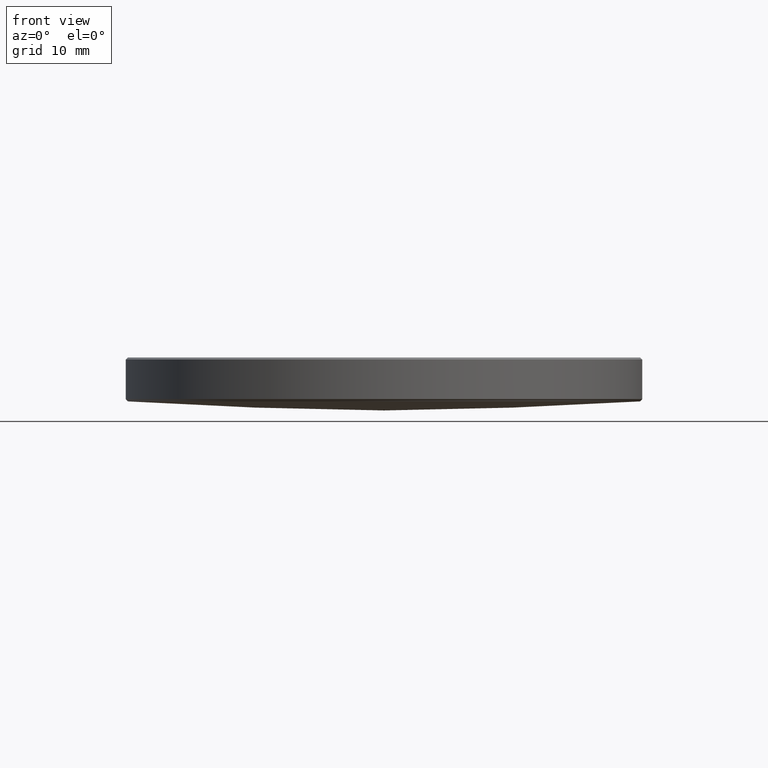
[diagram: clean part render]
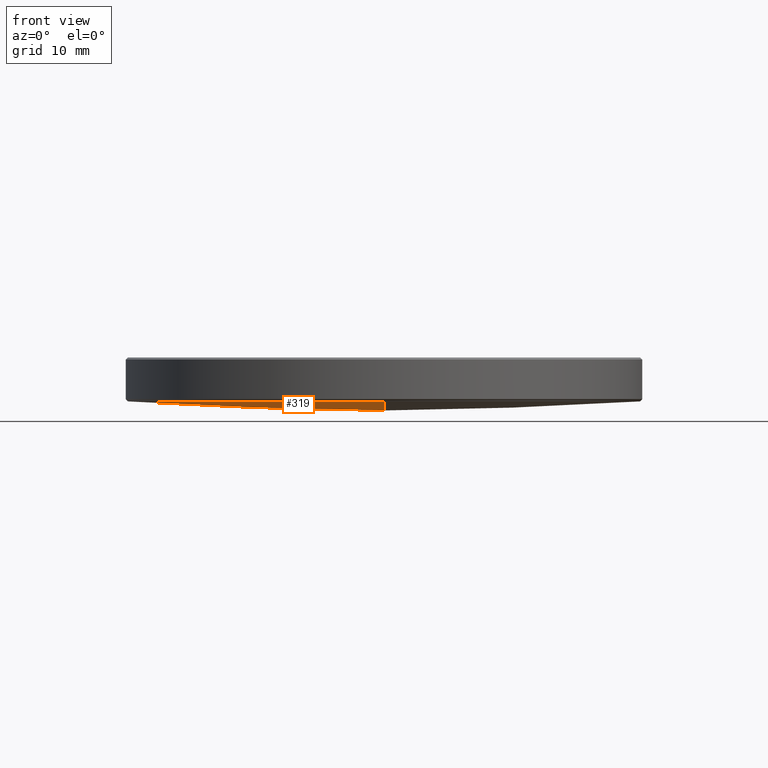
[diagram: same view with one face highlighted and labeled with its STEP entity id]
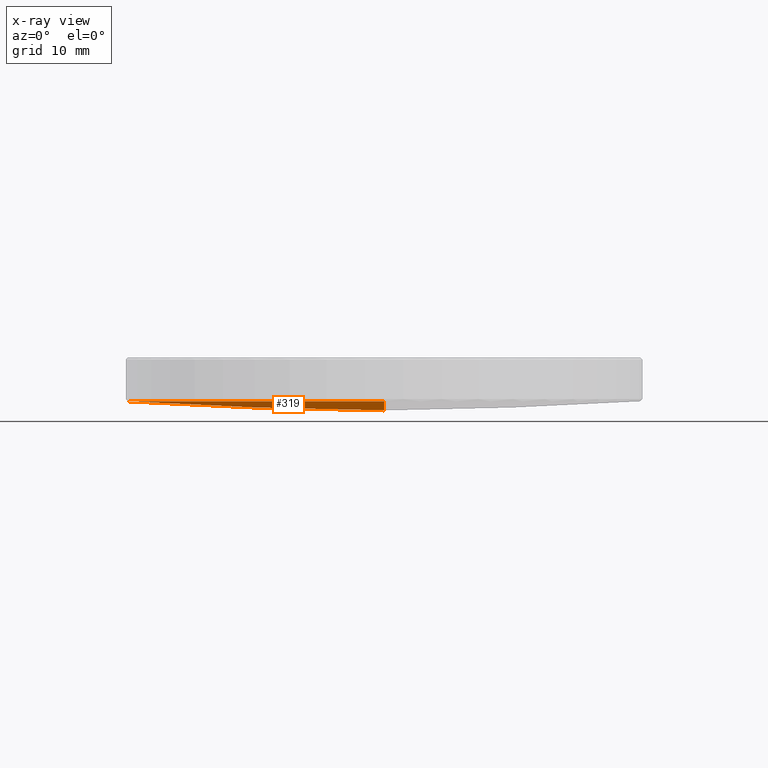
[diagram: x-ray of the same camera — body ghosted, the highlighted face saturated]
A machine part, front view. The second image highlights one B-rep face of the part: STEP entity #319.
The next image is the same camera in x-ray: the body ghosted, the highlighted face saturated — about 0% of this face is hidden behind the body in this view.
In plain terms, the highlighted spherical surface has radius 356.69 mm.
Its self-contained STEP definition (entity closure, byte-faithful):
#13 = AXIS2_PLACEMENT_3D ( 'NONE', #230, #133, #109 ) ;
#19 = CIRCLE ( 'NONE', #194, 356.6899999999999977 ) ;
#26 = DIRECTION ( 'NONE',  ( 0.000000000000000000, 0.000000000000000000, -1.000000000000000000 ) ) ;
#29 = VERTEX_POINT ( 'NONE', #203 ) ;
#40 = CARTESIAN_POINT ( 'NONE',  ( 0.000000000000000000, 2.184096333939347168E-14, 12.09447984699951739 ) ) ;
#41 = ORIENTED_EDGE ( 'NONE', *, *, #320, .T. ) ;
#52 = SPHERICAL_SURFACE ( 'NONE', #207, 356.6899999999999977 ) ;
#54 = EDGE_LOOP ( 'NONE', ( #120, #41, #206, #136 ) ) ;
#73 = CARTESIAN_POINT ( 'NONE',  ( 0.000000000000000000, 0.000000000000000000, 368.7844798469995453 ) ) ;
#94 = EDGE_CURVE ( 'NONE', #235, #114, #270, .T. ) ;
#100 = CARTESIAN_POINT ( 'NONE',  ( 0.000000000000000000, 0.000000000000000000, 368.7844798469995453 ) ) ;
#109 = DIRECTION ( 'NONE',  ( 1.000000000000000000, 0.000000000000000000, 0.000000000000000000 ) ) ;
#114 = VERTEX_POINT ( 'NONE', #331 ) ;
#115 = EDGE_CURVE ( 'NONE', #29, #278, #321, .T. ) ;
#120 = ORIENTED_EDGE ( 'NONE', *, *, #94, .F. ) ;
#126 = CIRCLE ( 'NONE', #13, 25.20055964190958520 ) ;
#128 = DIRECTION ( 'NONE',  ( -1.000000000000000000, 0.000000000000000000, 0.000000000000000000 ) ) ;
#132 = CARTESIAN_POINT ( 'NONE',  ( 0.000000000000000000, 0.000000000000000000, 368.7844798469995453 ) ) ;
#133 = DIRECTION ( 'NONE',  ( 0.000000000000000000, 0.000000000000000000, -1.000000000000000000 ) ) ;
#134 = AXIS2_PLACEMENT_3D ( 'NONE', #73, #277, #26 ) ;
#135 = DIRECTION ( 'NONE',  ( 1.000000000000000000, 0.000000000000000000, 0.000000000000000000 ) ) ;
#136 = ORIENTED_EDGE ( 'NONE', *, *, #154, .T. ) ;
#151 = CARTESIAN_POINT ( 'NONE',  ( 0.000000000000000000, 0.000000000000000000, 12.98581782909002946 ) ) ;
#154 = EDGE_CURVE ( 'NONE', #278, #114, #126, .T. ) ;
#176 = CARTESIAN_POINT ( 'NONE',  ( -25.20055964190958520, 3.098390670026466009E-15, 12.98581782909002946 ) ) ;
#187 = AXIS2_PLACEMENT_3D ( 'NONE', #151, #256, #135 ) ;
#194 = AXIS2_PLACEMENT_3D ( 'NONE', #100, #324, #249 ) ;
#203 = CARTESIAN_POINT ( 'NONE',  ( -3.086178470218615315E-15, -25.20055964190926545, 12.98581782909005788 ) ) ;
#206 = ORIENTED_EDGE ( 'NONE', *, *, #115, .T. ) ;
#207 = AXIS2_PLACEMENT_3D ( 'NONE', #132, #128, #222 ) ;
#222 = DIRECTION ( 'NONE',  ( 0.000000000000000000, 1.000000000000000000, 0.000000000000000000 ) ) ;
#230 = CARTESIAN_POINT ( 'NONE',  ( 0.000000000000000000, 0.000000000000000000, 12.98581782909002946 ) ) ;
#235 = VERTEX_POINT ( 'NONE', #40 ) ;
#249 = DIRECTION ( 'NONE',  ( -1.224646799147353207E-16, -1.000000000000000000, 0.000000000000000000 ) ) ;
#256 = DIRECTION ( 'NONE',  ( 0.000000000000000000, 0.000000000000000000, -1.000000000000000000 ) ) ;
#270 = CIRCLE ( 'NONE', #134, 356.6899999999999977 ) ;
#277 = DIRECTION ( 'NONE',  ( 1.000000000000000000, -0.000000000000000000, 0.000000000000000000 ) ) ;
#278 = VERTEX_POINT ( 'NONE', #176 ) ;
#319 = ADVANCED_FACE ( 'NONE', ( #330 ), #52, .T. ) ;
#320 = EDGE_CURVE ( 'NONE', #235, #29, #19, .T. ) ;
#321 = CIRCLE ( 'NONE', #187, 25.20055964190958520 ) ;
#324 = DIRECTION ( 'NONE',  ( -1.000000000000000000, 1.224646799147353207E-16, 0.000000000000000000 ) ) ;
#330 = FACE_OUTER_BOUND ( 'NONE', #54, .T. ) ;
#331 = CARTESIAN_POINT ( 'NONE',  ( 0.000000000000000000, 25.20055964190926545, 12.98581782909005788 ) ) ;